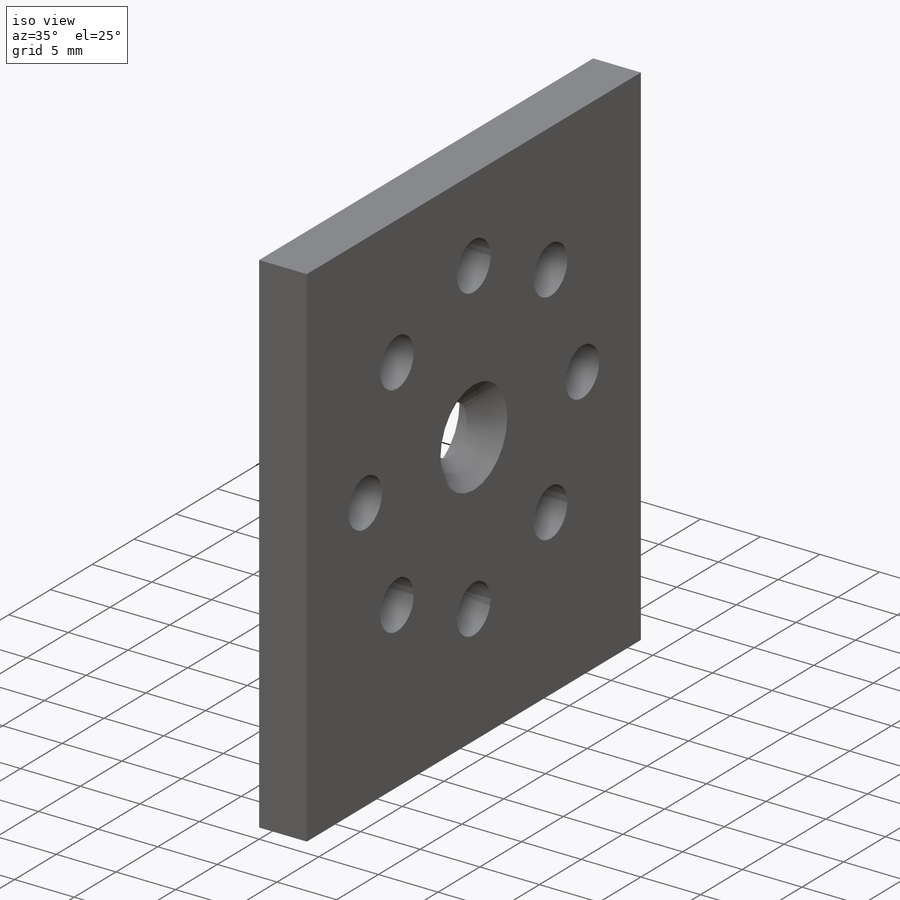
[diagram: iso view]
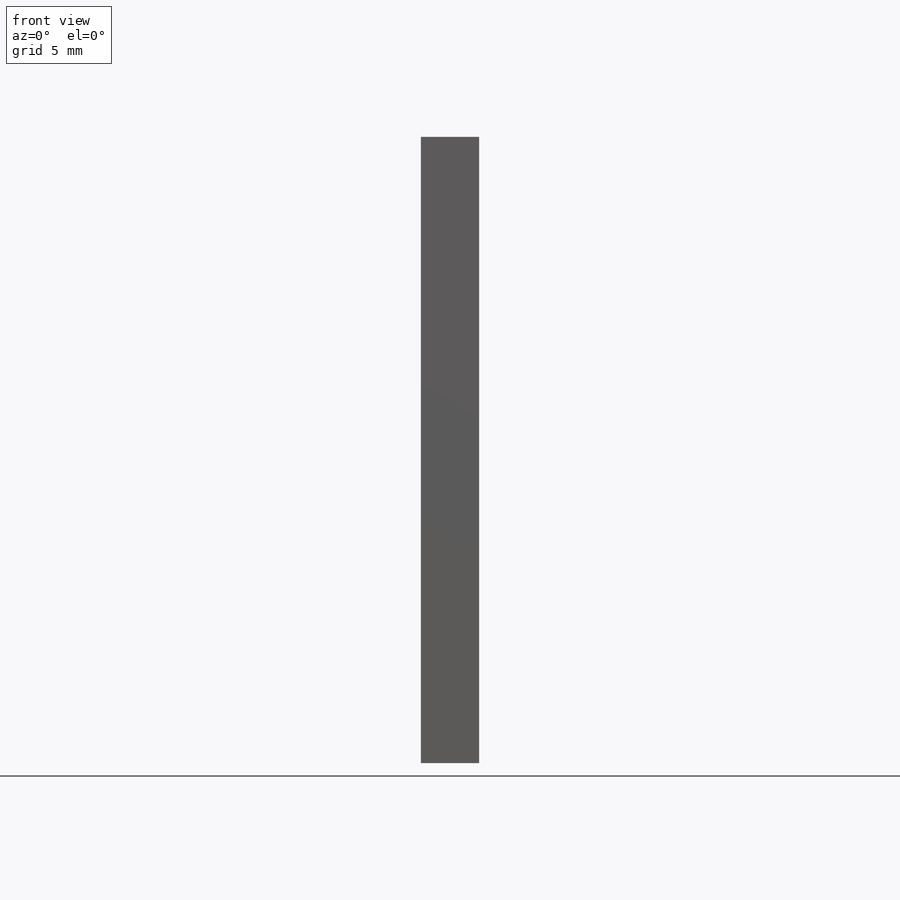
[diagram: front view]
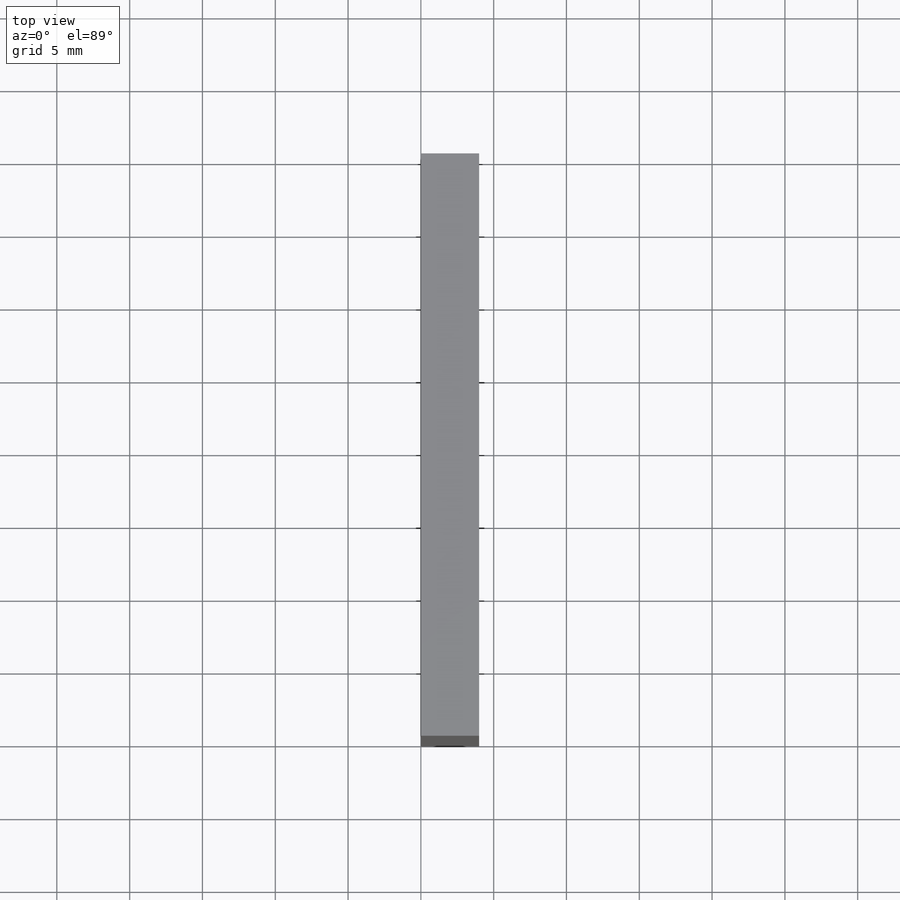
[diagram: top view]
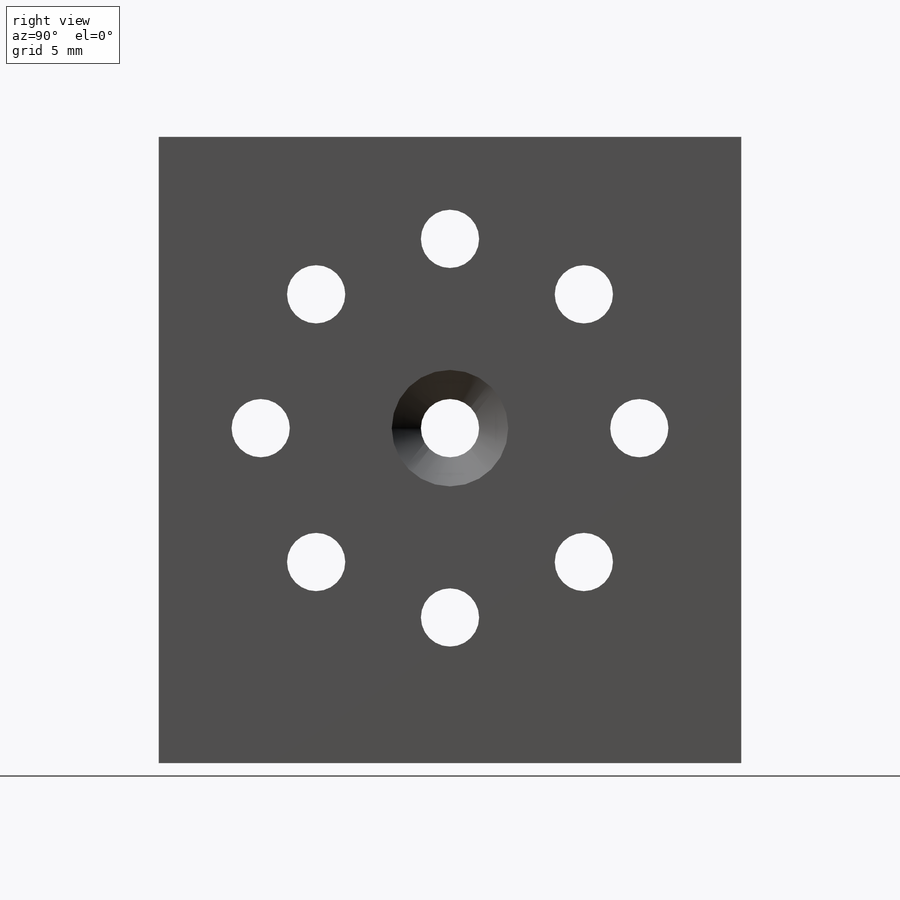
[diagram: right view]
SOLIDWORKS PART (.sldprt)
format: sldprt  version: not decoded by parser v0  size: 136,704 bytes
history: native  units: mm
features: plane x3, sketch x3, cut_extrude x2, material x1, extrude x1, chamfer x1 (+11 scaffold rows collapsed)
feature tree (22):
  scaffold x11  (default folders/planes/origin — collapsed)
  material  "Matériau <non spécifié>"
  plane  "Plan de face"
  plane  "Plan de dessus"
  plane  "Plan de droite"
  sketch  "Esquisse1"  dims[c1.D1=30.0mm c1.D2=43.0mm c2.D1=4.0mm]
  extrude  "Extrusion1"  Depth=40mm
  sketch  "Esquisse2"  dims[c1.D1=~1.241488mm c1.D2=4.0mm c1.D3=~4.222125mm c2.D1=23.0mm c2.D2=13.0mm]
  cut_extrude  "Extrusion2"  [1 undecoded]
  sketch  "Esquisse3"  dims[D1=~3.920513mm]
  cut_extrude  "Extrusion3"  Depth=2mm
  chamfer  "Chanfrein1"  Distance=2mm Angle=45deg
decode coverage: 6 of 7 modeling features carry decoded parameters
note: ~ marks probable driven/reference dimensions
note: 1 parameter value undecoded
note: suppression state not decoded; provenance and decode notes live in map.json
